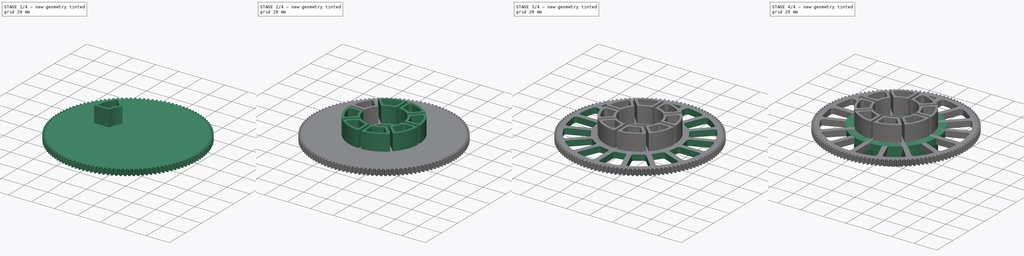
[diagram: build sequence overview — one tinted view per stage of 4, left to right]
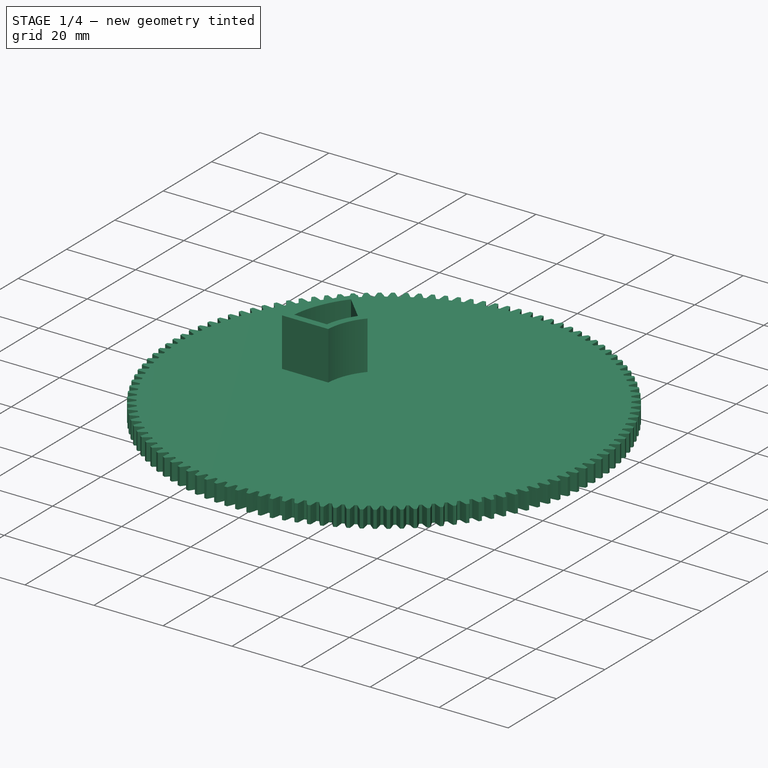
[diagram: stage 1 of 4 — iso view after this stage's code; geometry added in this stage tinted green]
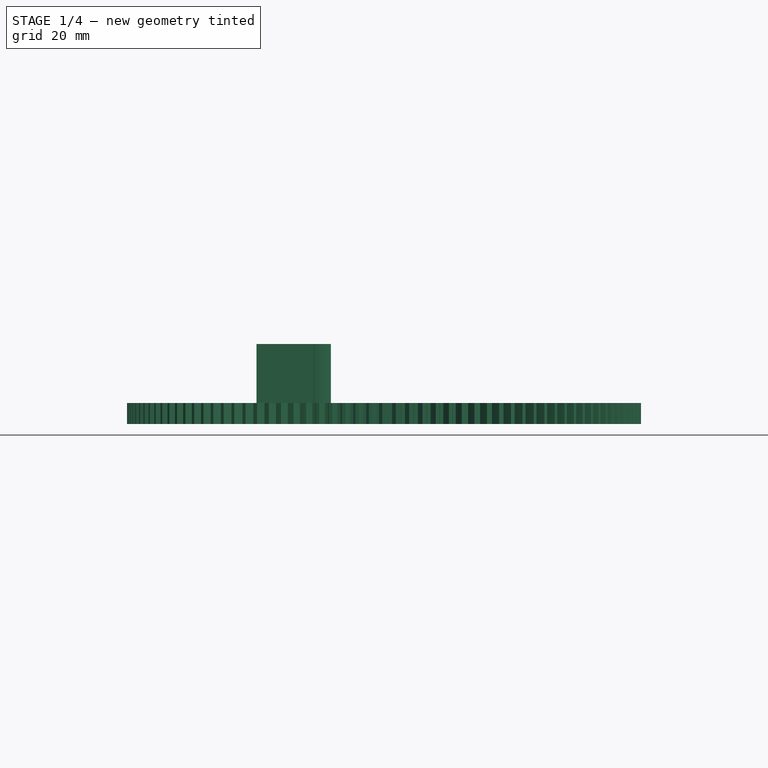
[diagram: stage 1 of 4 — front view after this stage's code; geometry added in this stage tinted green]
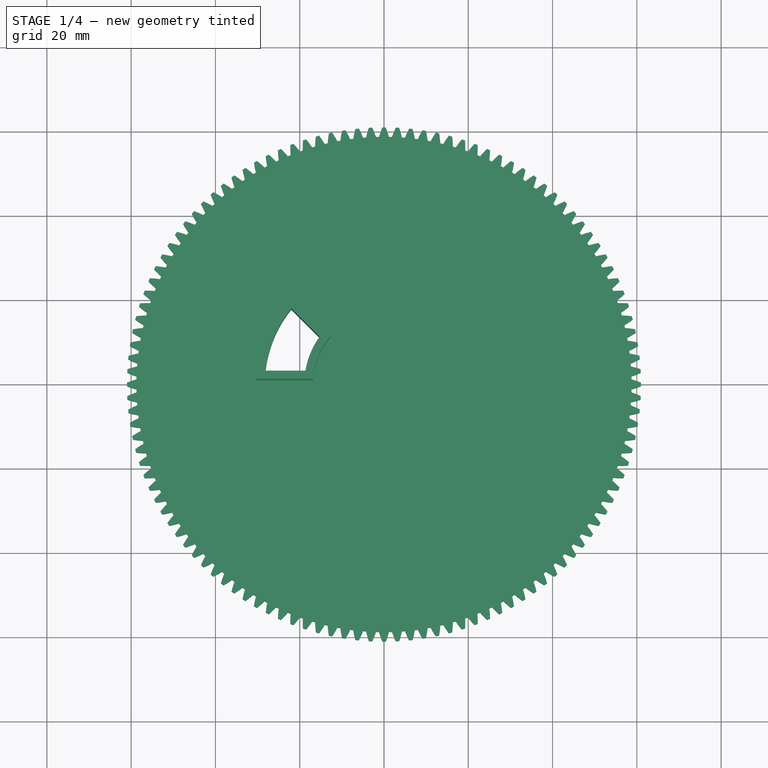
[diagram: stage 1 of 4 — top view after this stage's code; geometry added in this stage tinted green]
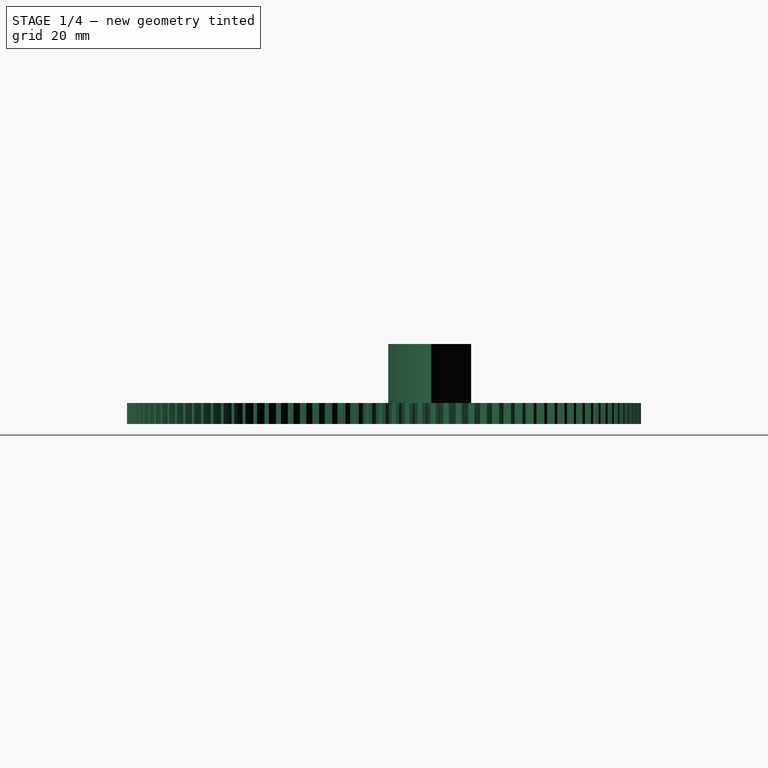
[diagram: stage 1 of 4 — right view after this stage's code; geometry added in this stage tinted green]
FCSTD DOCUMENT  (FreeCAD 0.20R29177 +233 (Git))
Label: solar_turner_coupling_test
License: All rights reserved
LicenseURL: http://en.wikipedia.org/wiki/All_rights_reserved
objects: Sketcher::SketchObject×8, PartDesign::Pocket×4, PartDesign::Pad×3, PartDesign::PolarPattern×3, PartDesign::Body×2, PartDesign::Fillet×2, Part::FeaturePython×1, PartDesign::FeatureBase×1
note: 33 computed .brp shape members not serialized (recipe doc carries the construction recipe); baked Part::Feature solids carry a one-line shape summary decoded from their .brp

FEATURE [PartDesign::Body] Body
  Group = -> [Sketch,Sketch001,Pad,Sketch002,Pad001,PolarPattern,Sketch003,Pocket]
  Origin = -> Origin
  Tip = -> Pocket
FEATURE [Part::FeaturePython] InvoluteGear  # WARN: FeaturePython — macro-defined, semantics opaque (R4)
  AttacherType = Attacher::AttachEngine3D
  MapMode = 5
  Placement = pos=(0,0,5) rot=(0,1,0;3.14159rad)
  angular_backlash = 0
  backlash = 0
  beta = 0
  clearance = 0.25
  da = 122
  df = 117.5
  double_helix = false
  dw = 120
  head = 0
  head_fillet = 0
  height = 5
  module = 1
  numpoints = 6
  pressure_angle = 20
  properties_from_tool = false
  reversed_backlash = false
  root_fillet = 0
  shift = 0
  simple = false
  teeth = 120
  transverse_pitch = 3.14159
  undercut = false
  version = 0.0.4
  expr: angular_backlash = backlash / dw * 360° / pi
  expr: dw = teeth * module
FEATURE [PartDesign::FeatureBase] BaseFeature
  BaseFeature = -> InvoluteGear
FEATURE [Sketcher::SketchObject] Sketch007
  FullyConstrained = true
  MapMode = 5
  Placement = pos=(0,0,5) rot=(0,0,1;0rad)
  Support = -> [BaseFeature]
  expr: Constraints[48] = 360 / 8 / 2
  sketch-geometry (24):
    g0: LineSegment StartX=-31.75 StartY=0 StartZ=0 EndX=-22.4506 EndY=-22.4506 EndZ=0
    g1: LineSegment StartX=-22.4506 StartY=-22.4506 StartZ=0 EndX=-1.5561e-12 EndY=-31.75 EndZ=0
    g2: LineSegment StartX=-1.5561e-12 StartY=-31.75 StartZ=0 EndX=22.4506 EndY=-22.4506 EndZ=0
    g3: LineSegment StartX=22.4506 StartY=-22.4506 StartZ=0 EndX=31.75 EndY=-3.2578e-12 EndZ=0
    g4: LineSegment StartX=31.75 StartY=-3.2578e-12 StartZ=0 EndX=22.4506 EndY=22.4506 EndZ=0
    g5: LineSegment StartX=22.4506 StartY=22.4506 StartZ=0 EndX=4.9631e-12 EndY=31.75 EndZ=0
    g6: LineSegment StartX=4.9625e-12 StartY=31.75 StartZ=0 EndX=-22.4506 EndY=22.4506 EndZ=0
    g7: LineSegment StartX=-22.4506 StartY=22.4506 StartZ=0 EndX=-31.75 EndY=6.672e-12 EndZ=0
    g8: Circle CenterX=0 CenterY=0 CenterZ=0 NormalX=0 NormalY=0 NormalZ=1 AngleXU=0 Radius=31.75
    g9: LineSegment StartX=-22.4506 StartY=22.4506 StartZ=0 EndX=0 EndY=0 EndZ=0
    g10: LineSegment StartX=-31.75 StartY=0 StartZ=0 EndX=0 EndY=0 EndZ=0
    g11: ArcOfCircle CenterX=0 CenterY=0 CenterZ=0 NormalX=0 NormalY=0 NormalZ=1 AngleXU=0 Radius=16.875 StartAngle=2.41549 EndAngle=3.0823
    g12: LineSegment StartX=-12.6186 StartY=11.2044 StartZ=0 EndX=-22.0995 EndY=20.6853 EndZ=0
    g13: LineSegment StartX=-22.0995 StartY=20.6853 StartZ=0 EndX=-30.2534 EndY=1 EndZ=0
    g14: LineSegment StartX=-30.2534 StartY=1 StartZ=0 EndX=-16.8453 EndY=1 EndZ=0
    g15: LineSegment StartX=-15.5905 StartY=6.45778 StartZ=0 EndX=-14.6666 EndY=6.0751 EndZ=0
    g16: LineSegment StartX=-23.5494 StartY=1 StartZ=0 EndX=-23.5494 EndY=0 EndZ=0
    g17: LineSegment StartX=-26.1764 StartY=10.8426 StartZ=0 EndX=-27.1003 EndY=11.2253 EndZ=0
    g18: LineSegment StartX=-17.359 StartY=15.9448 StartZ=0 EndX=-16.6519 EndY=16.6519 EndZ=0
    g19: LineSegment StartX=-16.8453 StartY=1 StartZ=0 EndX=-30.2534 EndY=1 EndZ=0
    g20: LineSegment StartX=-30.2534 StartY=1 StartZ=0 EndX=-22.0995 EndY=20.6853 EndZ=0
    g21: LineSegment StartX=-22.0995 StartY=20.6853 StartZ=0 EndX=-12.6186 EndY=11.2044 EndZ=0
    g22: ArcOfCircle CenterX=0 CenterY=0 CenterZ=0 NormalX=0 NormalY=0 NormalZ=1 AngleXU=0 Radius=30.2699 StartAngle=2.38924 EndAngle=3.10855
    g23: Circle CenterX=0 CenterY=0 CenterZ=0 NormalX=0 NormalY=0 NormalZ=1 AngleXU=0 Radius=15.875
  constraints (59):
    c: Coincident(g0,g1)
    c: Coincident(g1,g2)
    c: Coincident(g2,g3)
    c: Coincident(g3,g4)
    c: Coincident(g4,g5)
    c: Coincident(g5,g6)
    c: Coincident(g6,g7)
    c: Equal(g0, g1-g7) x7
    c: PointOnObject(g0,g8)
    c: PointOnObject(g1,g8)
    c: PointOnObject(g2,g8)
    c: PointOnObject(g3,g8)
    c: PointOnObject(g4,g8)
    c: PointOnObject(g5,g8)
    c: PointOnObject(g6,g8)
    c: PointOnObject(g7,g8)
    c: Coincident(g9,g6)
    c: Coincident(g9,g8)
    c: Coincident(g10,g0)
    c: Coincident(g10,g8)
    c: Horizontal(g10)
    c: Coincident(g11,g8)
    c: Coincident(g12,g11)
    c: Coincident(g13,g12)
    c: Coincident(g14,g13)
    c: Coincident(g14,g11)
    c: Horizontal(g14)
    c: Parallel(g12,g9)
    c: Parallel(g13,g7)
    c: PointOnObject(g15,g11)
    c: Perpendicular(g11,g15)
    c: PointOnObject(g16,g10)
    c: Vertical(g16)
    c: PointOnObject(g17,g7)
    c: Perpendicular(g13,g17)
    c: Distance(g17) = 1
    c: PointOnObject(g18,g9)
    c: Perpendicular(g12,g18)
    c: Symmetric(g12,g13,g17)
    c: Symmetric(g6,g0,g17)
    c: Symmetric(g13,g11,g16)
    c: Symmetric(g12,g11,g18)
    c: Angle(g15,g10) = 0.392699
    c: Equal(g16,g17)
    c: Equal(g18,g15)
    c: Coincident(g19,g11)
    c: Coincident(g19,g13)
    c: Coincident(g20,g19)
    c: Coincident(g20,g12)
    c: Coincident(g21,g20)
    c: Coincident(g21,g11)
    c: Coincident(g22,g11)
    c: Coincident(g22,g19)
    c: Coincident(g22,g21)
    c: Coincident(g11,g-1)
    c: Coincident(g23,g11)
    c: PointOnObject(g15,g23)
    c: Diameter(g23) = 31.75
    c: Diameter(g8) = 63.5
FEATURE [PartDesign::Pad] Pad002
  BaseFeature = -> BaseFeature
  Direction = (0,0,1)
  Length = 14
  Length2 = 10
  Profile = -> Sketch007
  ReferenceAxis = -> Sketch007 [N_Axis]
  Type = 0
FEATURE [Sketcher::SketchObject] Sketch010
  ExternalGeometry = -> [Pad002]
  FullyConstrained = true
  MapMode = 5
  Placement = pos=(0,0,19) rot=(0,0,1;0rad)
  Support = -> [Pad002]
  sketch-geometry (8):
    g0: LineSegment StartX=-15.2983 StartY=11.0557 StartZ=0 EndX=-21.9983 EndY=17.7557 EndZ=0
    g1: LineSegment StartX=-18.6351 StartY=3 StartZ=0 EndX=-28.1103 EndY=3 EndZ=0
    g2: ArcOfCircle CenterX=0 CenterY=0 CenterZ=0 NormalX=0 NormalY=0 NormalZ=1 AngleXU=0 Radius=18.875 StartAngle=2.51581 EndAngle=2.98198
    g3: ArcOfCircle CenterX=0 CenterY=0 CenterZ=0 NormalX=0 NormalY=0 NormalZ=1 AngleXU=0 Radius=28.2699 StartAngle=2.46251 EndAngle=3.03527
    g4: LineSegment StartX=-21.9983 StartY=17.7557 StartZ=0 EndX=-23.5546 EndY=19.0118 EndZ=0
    g5: LineSegment StartX=-23.3727 StartY=3 StartZ=0 EndX=-23.3727 EndY=1 EndZ=0
    g6: LineSegment StartX=-18.6483 StartY=14.4057 StartZ=0 EndX=-17.2341 EndY=15.8199 EndZ=0
    g7: LineSegment StartX=-15.2983 StartY=11.0557 StartZ=0 EndX=-13.6773 EndY=9.8842 EndZ=0
  constraints (26):
    c: Horizontal(g1)
    c: Coincident(g2,g-6)
    c: Coincident(g2,g1)
    c: Coincident(g2,g0)
    c: Coincident(g3,g2)
    c: Coincident(g3,g1)
    c: Coincident(g3,g0)
    c: Parallel(g0,g-3)
    c: Equal(g6,g4)
    c: Equal(g4,g5)
    c: Perpendicular(g0,g6)
    c: Perpendicular(g3,g4)
    c: Perpendicular(g1,g5)
    c: PointOnObject(g5,g-5)
    c: PointOnObject(g6,g-3)
    c: PointOnObject(g4,g-4)
    c: PointOnObject(g4,g3)
    c: Symmetric(g0,g0,g6)
    c: Symmetric(g1,g1,g5)
    c: PointOnObject(g7,g-6)
    c: PointOnObject(g7,g2)
    c: Perpendicular(g2,g7)
    c: Equal(g7,g4)
    c: Distance(g4) = 2
    c: PointOnObject(g4,g0)
    c: PointOnObject(g7,g0)
FEATURE [PartDesign::Pocket] Pocket003
  BaseFeature = -> Pad002
  Direction = (0,0,-1)
  Length = 5
  Length2 = 5
  Profile = -> Sketch010
  ReferenceAxis = -> Sketch010 [N_Axis]
  Type = 2
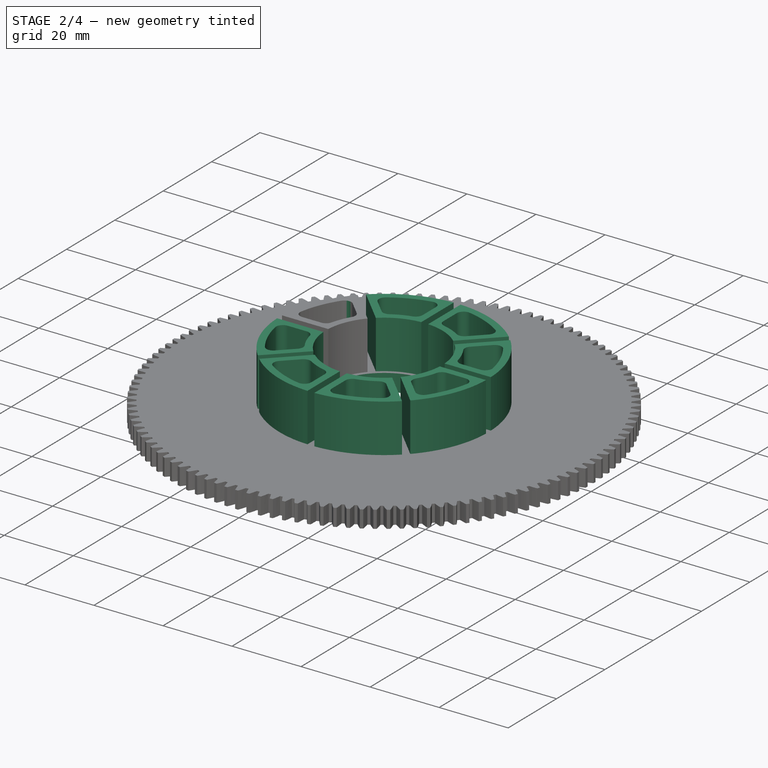
[diagram: stage 2 of 4 — iso view after this stage's code; geometry added in this stage tinted green]
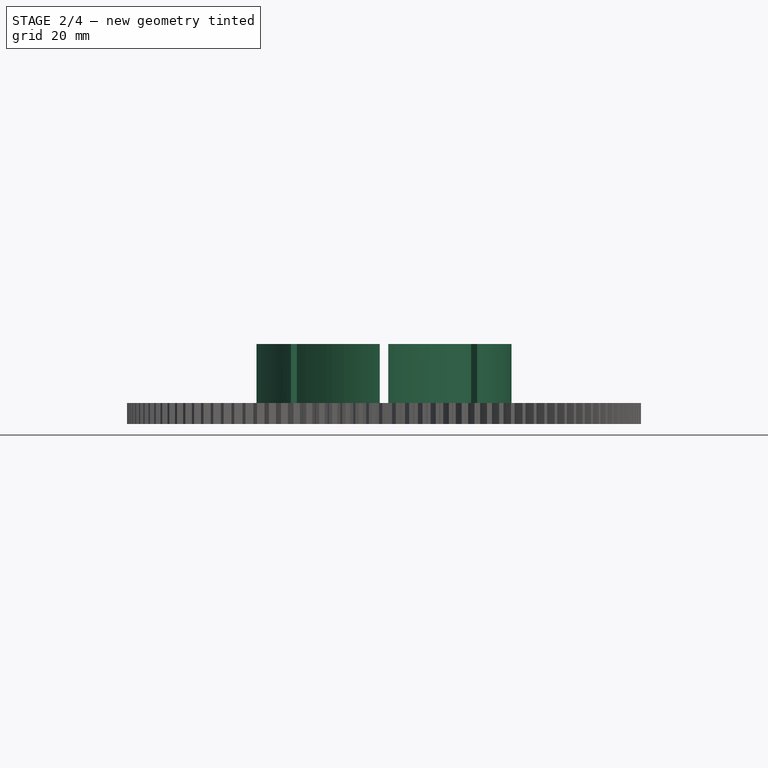
[diagram: stage 2 of 4 — front view after this stage's code; geometry added in this stage tinted green]
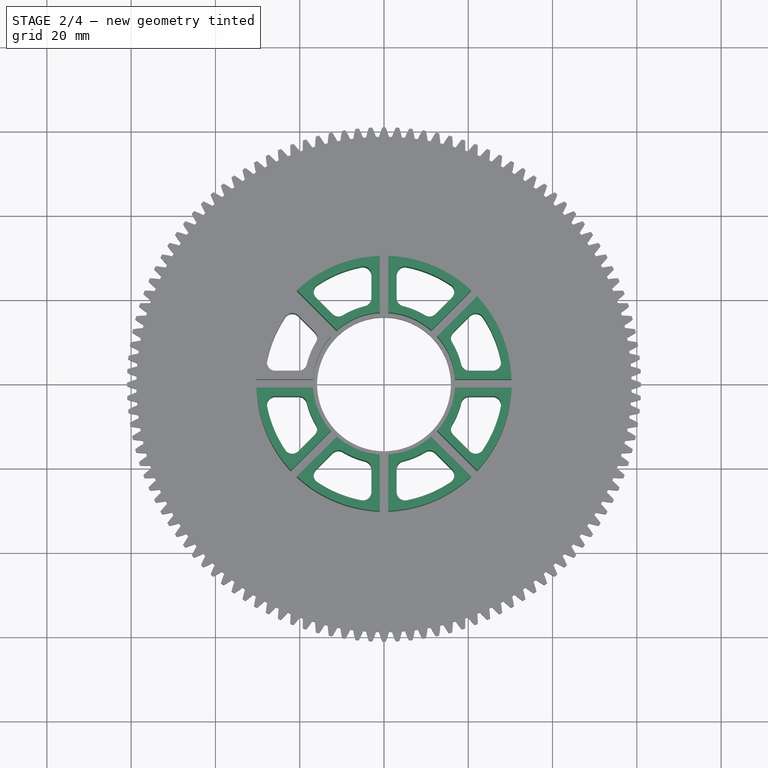
[diagram: stage 2 of 4 — top view after this stage's code; geometry added in this stage tinted green]
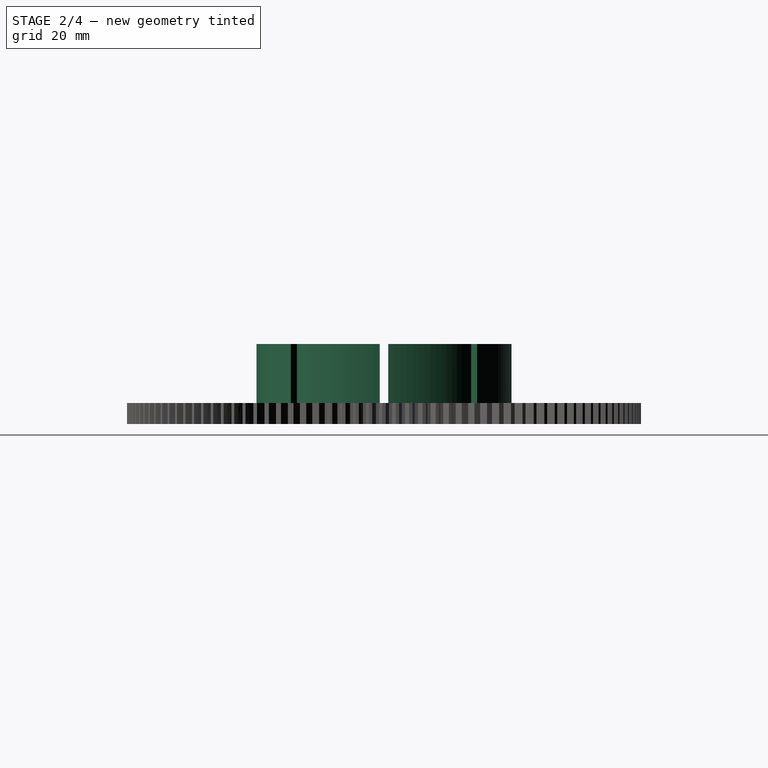
[diagram: stage 2 of 4 — right view after this stage's code; geometry added in this stage tinted green]
FEATURE [PartDesign::Fillet] Fillet
  Base = -> Pocket003 [Edge1453,Edge1450,Edge1451,Edge1455]
  BaseFeature = -> Pocket003
  Radius = 2
  SupportTransform = false
  UseAllEdges = false
FEATURE [PartDesign::PolarPattern] PolarPattern001
  Angle = 360
  Axis = -> Sketch007 [N_Axis]
  BaseFeature = -> Fillet
  Occurrences = 8
  Originals = -> [Pad002,Pocket003,Fillet]
FEATURE [Sketcher::SketchObject] Sketch008
  FullyConstrained = true
  MapMode = 5
  Placement = pos=(0,0,5) rot=(0,0,1;0rad)
  Support = -> [PolarPattern001]
  sketch-geometry (1):
    g0: Circle CenterX=0 CenterY=0 CenterZ=0 NormalX=0 NormalY=0 NormalZ=1 AngleXU=0 Radius=15.875
  constraints (2):
    c: Coincident(g0,g-1)
    c: Diameter(g0) = 31.75
FEATURE [PartDesign::Pocket] Pocket001
  BaseFeature = -> PolarPattern001
  Direction = (0,0,-1)
  Length = 5
  Length2 = 5
  Profile = -> Sketch008
  ReferenceAxis = -> Sketch008 [N_Axis]
  Type = 2
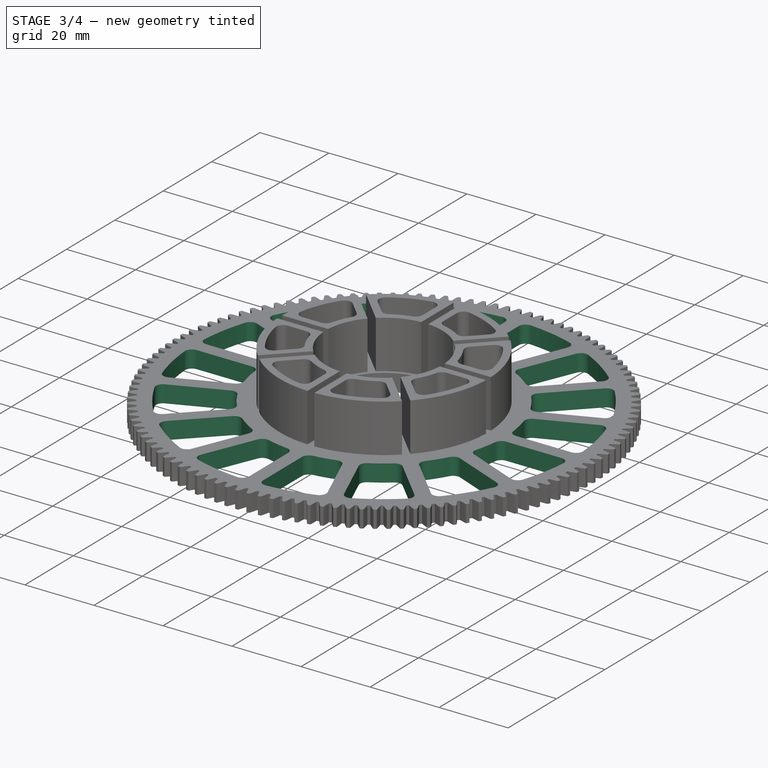
[diagram: stage 3 of 4 — iso view after this stage's code; geometry added in this stage tinted green]
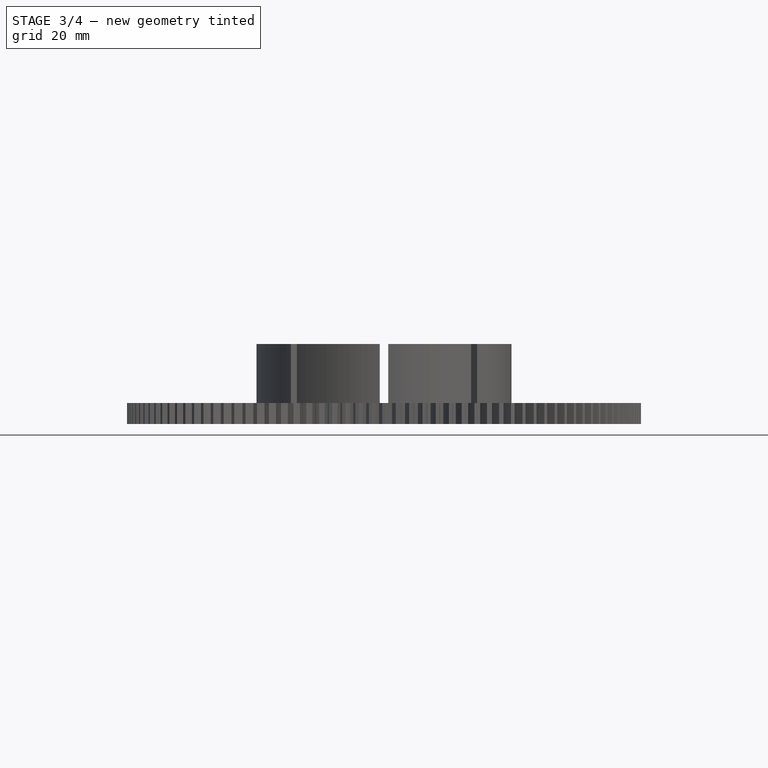
[diagram: stage 3 of 4 — front view after this stage's code; geometry added in this stage tinted green]
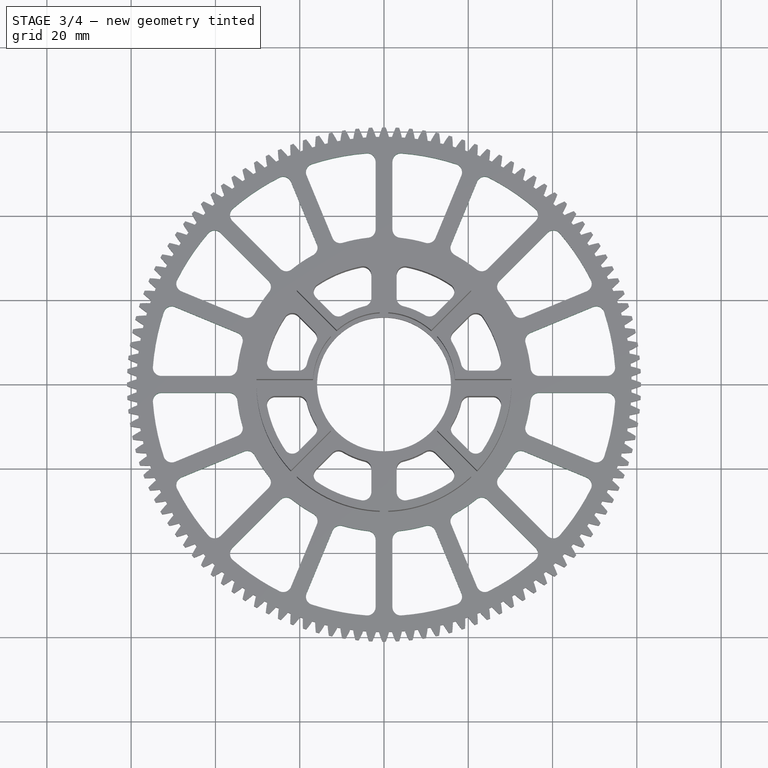
[diagram: stage 3 of 4 — top view after this stage's code; geometry added in this stage tinted green]
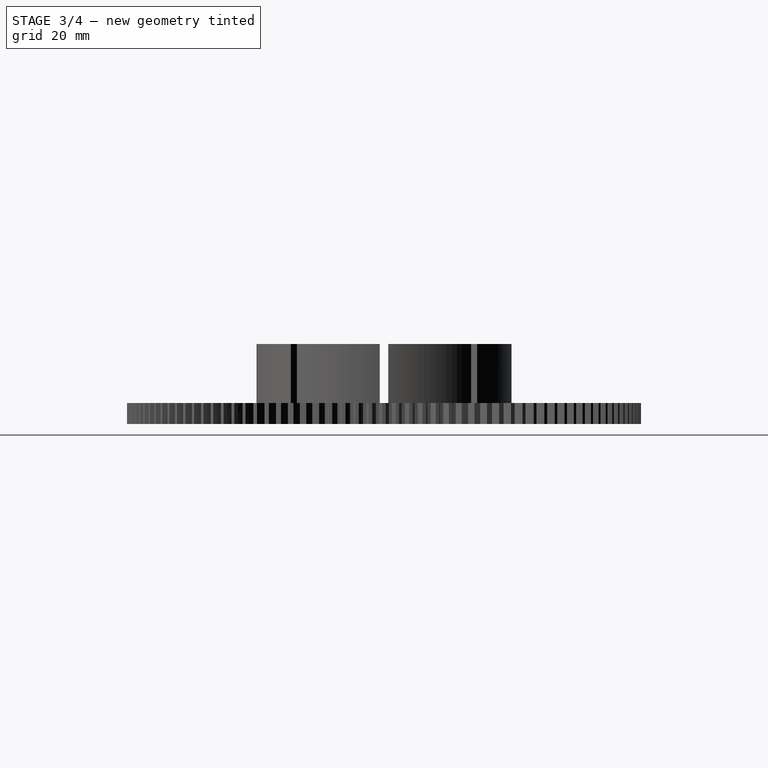
[diagram: stage 3 of 4 — right view after this stage's code; geometry added in this stage tinted green]
FEATURE [Sketcher::SketchObject] Sketch009
  FullyConstrained = true
  MapMode = 5
  Placement = pos=(0,0,5) rot=(0,0,1;0rad)
  Support = -> [Pocket001]
  sketch-geometry (19):
    g0: Circle CenterX=0 CenterY=0 CenterZ=0 NormalX=0 NormalY=0 NormalZ=1 AngleXU=0 Radius=35
    g1: LineSegment StartX=-55 StartY=0 StartZ=0 EndX=-38.8909 EndY=-38.8909 EndZ=0
    g2: LineSegment StartX=-38.8909 StartY=-38.8909 StartZ=0 EndX=7.1e-15 EndY=-55 EndZ=0
    g3: LineSegment StartX=7.1e-15 StartY=-55 StartZ=0 EndX=38.8909 EndY=-38.8909 EndZ=0
    g4: LineSegment StartX=38.8909 StartY=-38.8909 StartZ=0 EndX=55 EndY=-7.1e-15 EndZ=0
    g5: LineSegment StartX=55 StartY=-7.1e-15 StartZ=0 EndX=38.8909 EndY=38.8909 EndZ=0
    g6: LineSegment StartX=38.8909 StartY=38.8909 StartZ=0 EndX=0 EndY=55 EndZ=0
    g7: LineSegment StartX=0 StartY=55 StartZ=0 EndX=-38.8909 EndY=38.8909 EndZ=0
    g8: LineSegment StartX=-38.8909 StartY=38.8909 StartZ=0 EndX=-55 EndY=0 EndZ=0
    g9: Circle CenterX=0 CenterY=0 CenterZ=0 NormalX=0 NormalY=0 NormalZ=1 AngleXU=0 Radius=55
    g10: LineSegment StartX=-55 StartY=0 StartZ=0 EndX=-35 EndY=0 EndZ=0
    g11: LineSegment StartX=-24.7487 StartY=-24.7487 StartZ=0 EndX=-38.8909 EndY=-38.8909 EndZ=0
    g12: LineSegment StartX=-54.9636 StartY=-2 StartZ=0 EndX=-34.9428 EndY=-2 EndZ=0
    g13: LineSegment StartX=-51.5451 StartY=-19.1859 StartZ=0 EndX=-33.0483 EndY=-11.5243 EndZ=0
    g14: ArcOfCircle CenterX=0 CenterY=0 CenterZ=0 NormalX=0 NormalY=0 NormalZ=1 AngleXU=0 Radius=35 StartAngle=3.19877 EndAngle=3.47712
    g15: ArcOfCircle CenterX=0 CenterY=0 CenterZ=0 NormalX=0 NormalY=0 NormalZ=1 AngleXU=0 Radius=55 StartAngle=3.17796 EndAngle=3.49792
    g16: LineSegment StartX=-44.9532 StartY=-2 StartZ=0 EndX=-44.9532 EndY=0 EndZ=0
    g17: LineSegment StartX=0 StartY=0 StartZ=0 EndX=-46.9454 EndY=-19.4454 EndZ=0
    g18: LineSegment StartX=-42.2967 StartY=-15.3551 StartZ=0 EndX=-41.5314 EndY=-17.2029 EndZ=0
  constraints (49):
    c: Diameter(g0) = 70
    c: Coincident(g1,g2)
    c: Coincident(g2,g3)
    c: Coincident(g3,g4)
    c: Coincident(g4,g5)
    c: Coincident(g5,g6)
    c: Coincident(g6,g7)
    c: Coincident(g7,g8)
    c: Coincident(g8,g1)
    c: Equal(g1, g2-g8) x7
    c: PointOnObject(g1,g9)
    c: PointOnObject(g2,g9)
    c: PointOnObject(g3,g9)
    c: PointOnObject(g4,g9)
    c: PointOnObject(g5,g9)
    c: PointOnObject(g6,g9)
    c: PointOnObject(g7,g9)
    c: PointOnObject(g8,g9)
    c: Coincident(g9,g0)
    c: PointOnObject(g8,g-1)
    c: Diameter(g9) = 110
    c: PointOnObject(g10,g1)
    c: PointOnObject(g10,g0)
    c: Horizontal(g10)
    c: PointOnObject(g11,g0)
    c: Coincident(g11,g1)
    c: Perpendicular(g0,g11)
    c: Perpendicular(g0,g10)
    c: Coincident(g-1,g0)
    c: Horizontal(g12)
    c: PointOnObject(g12,g0)
    c: PointOnObject(g13,g9)
    c: Coincident(g14,g0)
    c: Coincident(g14,g13)
    c: Coincident(g14,g12)
    c: Coincident(g15,g14)
    c: Coincident(g15,g13)
    c: Coincident(g15,g12)
    c: PointOnObject(g16,g10)
    c: Vertical(g16)
    c: Distance(g16) = 2
    c: Symmetric(g12,g12,g16)
    c: Coincident(g17,g14)
    c: Symmetric(g1,g1,g17)
    c: Parallel(g13,g17)
    c: Perpendicular(g13,g18)
    c: Symmetric(g13,g13,g18)
    c: PointOnObject(g18,g17)
    c: Equal(g16,g18)
FEATURE [PartDesign::Pocket] Pocket002
  BaseFeature = -> Pocket001
  Direction = (0,0,-1)
  Length = 5
  Length2 = 5
  Profile = -> Sketch009
  ReferenceAxis = -> Sketch009 [N_Axis]
  Type = 2
FEATURE [PartDesign::Fillet] Fillet001
  Base = -> Pocket002 [Edge1540,Edge1544,Edge1542,Edge1539]
  BaseFeature = -> Pocket002
  Radius = 2
  SupportTransform = false
  UseAllEdges = false
FEATURE [PartDesign::PolarPattern] PolarPattern002
  Angle = 360
  Axis = -> Sketch009 [N_Axis]
  BaseFeature = -> Fillet001
  Occurrences = 16
  Originals = -> [Pocket002,Fillet001]
FEATURE [PartDesign::Body] Body001  label="geared_coupler"
  BaseFeature = -> InvoluteGear
  Group = -> [BaseFeature,Sketch007,Pad002,Sketch010,Pocket003,Fillet,PolarPattern001,Sketch008,Pocket001,Sketch009,Pocket002,Fillet001,PolarPattern002]
  Origin = -> Origin001
  Tip = -> PolarPattern002
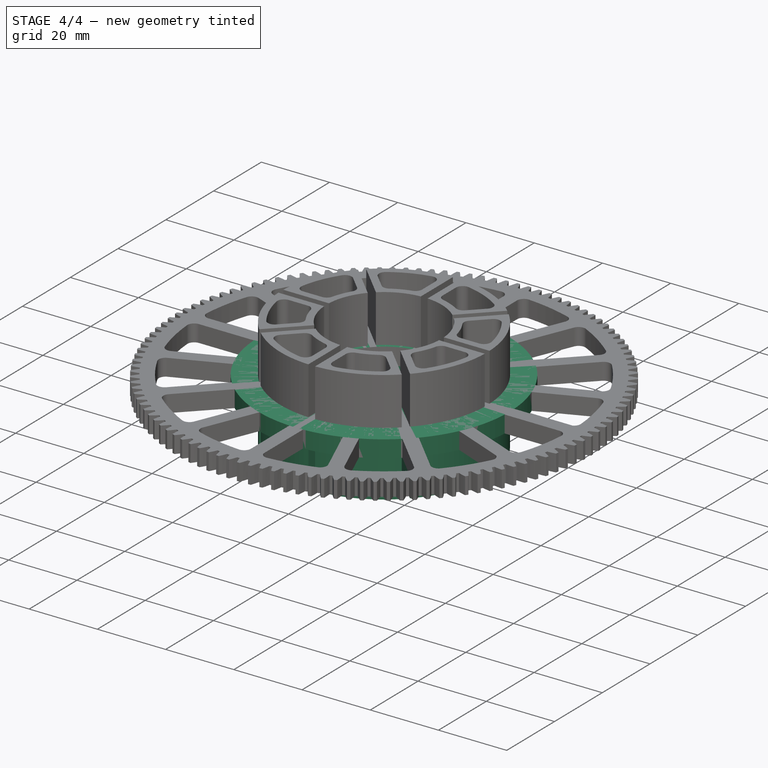
[diagram: stage 4 of 4 — iso view after this stage's code; geometry added in this stage tinted green]
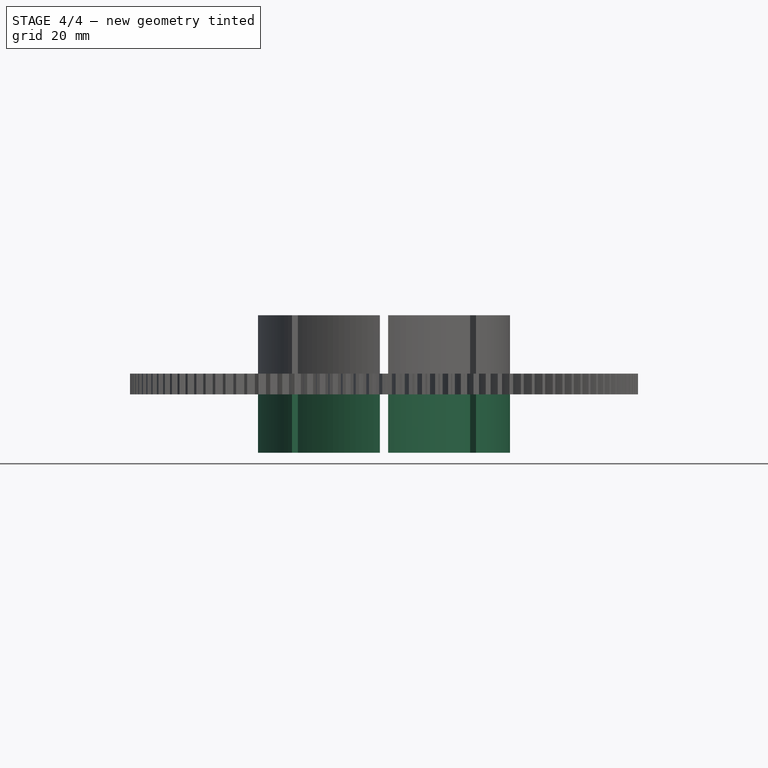
[diagram: stage 4 of 4 — front view after this stage's code; geometry added in this stage tinted green]
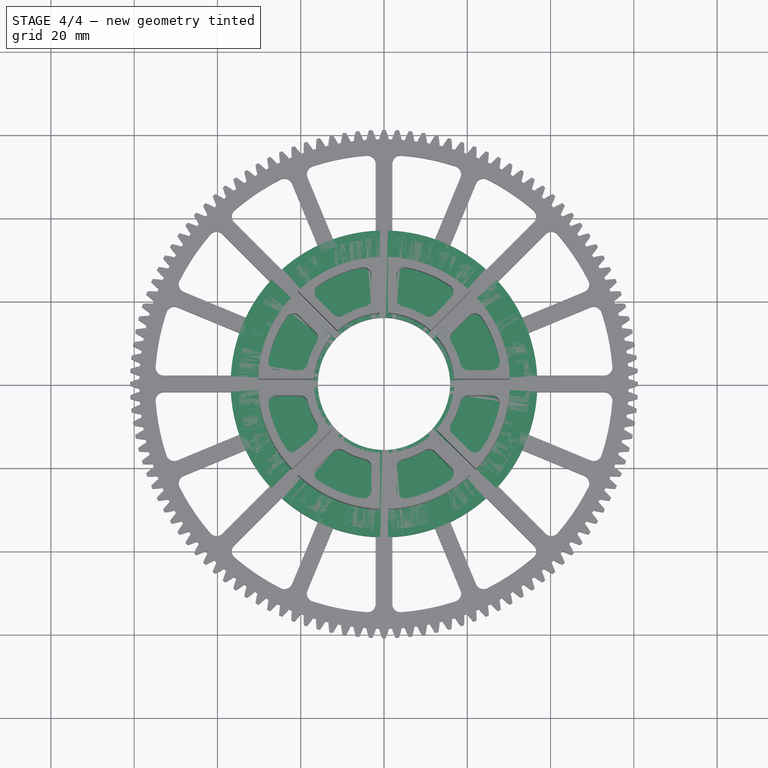
[diagram: stage 4 of 4 — top view after this stage's code; geometry added in this stage tinted green]
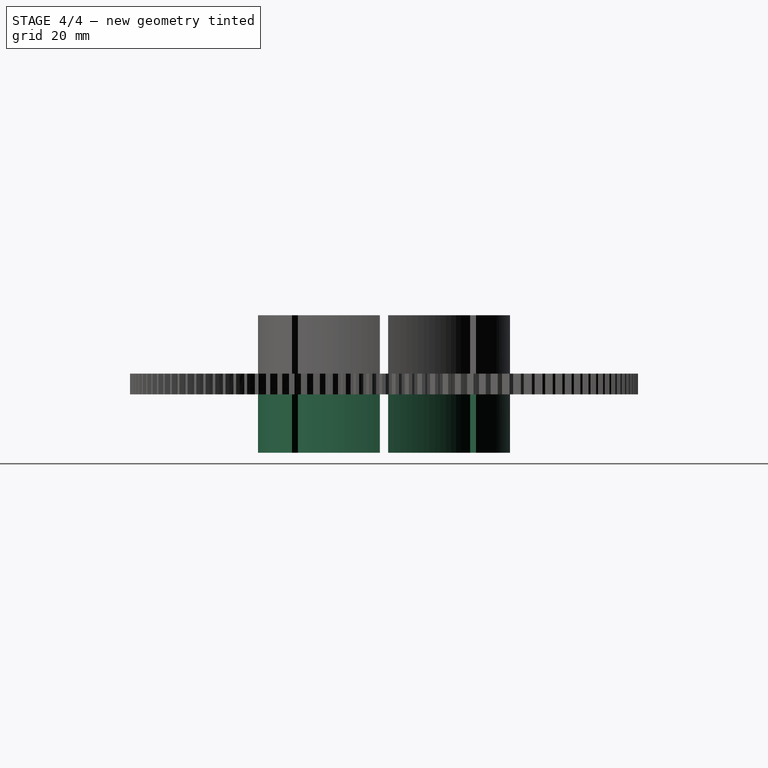
[diagram: stage 4 of 4 — right view after this stage's code; geometry added in this stage tinted green]
FEATURE [Sketcher::SketchObject] Sketch
  FullyConstrained = true
  MapMode = 5
  Support = -> [XY_Plane]
  expr: Constraints[1] = 2.9in
  sketch-geometry (3):
    g0: Circle CenterX=0 CenterY=0 CenterZ=0 NormalX=0 NormalY=0 NormalZ=1 AngleXU=0 Radius=36.83
    g1: Circle CenterX=0 CenterY=0 CenterZ=0 NormalX=0 NormalY=0 NormalZ=1 AngleXU=0 Radius=31.75
    g2: Circle CenterX=0 CenterY=0 CenterZ=0 NormalX=0 NormalY=0 NormalZ=1 AngleXU=0 Radius=15.875
  constraints (6):
    c: Coincident(g0,g-1)
    c: Diameter(g0) = 73.66
    c: Coincident(g1,g0)
    c: Diameter(g1) = 63.5
    c: Coincident(g2,g0)
    c: Diameter(g2) = 31.75
FEATURE [Sketcher::SketchObject] Sketch001
  ExternalGeometry = -> [Sketch]
  FullyConstrained = true
  MapMode = 5
  Support = -> [XY_Plane]
  sketch-geometry (1):
    g0: Circle CenterX=0 CenterY=0 CenterZ=0 NormalX=0 NormalY=0 NormalZ=1 AngleXU=0 Radius=36.83
  constraints (2):
    c: Coincident(g0,g-3)
    c: Equal(g0,g-3)
FEATURE [PartDesign::Pad] Pad
  Direction = (0,0,1)
  Length = 5
  Length2 = 10
  Profile = -> Sketch001
  ReferenceAxis = -> Sketch001 [N_Axis]
  Type = 0
FEATURE [Sketcher::SketchObject] Sketch002
  ExternalGeometry = -> [Sketch]
  FullyConstrained = true
  MapMode = 5
  Placement = pos=(0,0,0) rot=(1,0,0;3.14159rad)
  Support = -> [Pad]
  expr: Constraints[51] = 360 / 8 / 2
  sketch-geometry (23):
    g0: LineSegment StartX=-31.75 StartY=0 StartZ=0 EndX=-22.4506 EndY=-22.4506 EndZ=0
    g1: LineSegment StartX=-22.4506 StartY=-22.4506 StartZ=0 EndX=1.9575e-12 EndY=-31.75 EndZ=0
    g2: LineSegment StartX=1.9575e-12 StartY=-31.75 StartZ=0 EndX=22.4506 EndY=-22.4506 EndZ=0
    g3: LineSegment StartX=22.4506 StartY=-22.4506 StartZ=0 EndX=31.75 EndY=3.0269e-12 EndZ=0
    g4: LineSegment StartX=31.75 StartY=3.0269e-12 StartZ=0 EndX=22.4506 EndY=22.4506 EndZ=0
    g5: LineSegment StartX=22.4506 StartY=22.4506 StartZ=0 EndX=-4.0927e-12 EndY=31.75 EndZ=0
    g6: LineSegment StartX=-4.0939e-12 StartY=31.75 StartZ=0 EndX=-22.4506 EndY=22.4506 EndZ=0
    g7: LineSegment StartX=-22.4506 StartY=22.4506 StartZ=0 EndX=-31.75 EndY=-5.1656e-12 EndZ=0
    g8: Circle CenterX=0 CenterY=0 CenterZ=0 NormalX=0 NormalY=0 NormalZ=1 AngleXU=0 Radius=31.75
    g9: LineSegment StartX=-22.4506 StartY=22.4506 StartZ=0 EndX=0 EndY=0 EndZ=0
    g10: LineSegment StartX=-31.75 StartY=0 StartZ=0 EndX=0 EndY=0 EndZ=0
    g11: ArcOfCircle CenterX=0 CenterY=0 CenterZ=0 NormalX=0 NormalY=0 NormalZ=1 AngleXU=0 Radius=16.875 StartAngle=2.41549 EndAngle=3.0823
    g12: LineSegment StartX=-12.6186 StartY=11.2044 StartZ=0 EndX=-22.0995 EndY=20.6853 EndZ=0
    g13: LineSegment StartX=-22.0995 StartY=20.6853 StartZ=0 EndX=-30.2534 EndY=1 EndZ=0
    g14: LineSegment StartX=-30.2534 StartY=1 StartZ=0 EndX=-16.8453 EndY=1 EndZ=0
    g15: LineSegment StartX=-15.5905 StartY=6.45778 StartZ=0 EndX=-14.6666 EndY=6.0751 EndZ=0
    g16: LineSegment StartX=-23.5494 StartY=1 StartZ=0 EndX=-23.5494 EndY=0 EndZ=0
    g17: LineSegment StartX=-26.1764 StartY=10.8426 StartZ=0 EndX=-27.1003 EndY=11.2253 EndZ=0
    g18: LineSegment StartX=-17.359 StartY=15.9448 StartZ=0 EndX=-16.6519 EndY=16.6519 EndZ=0
    g19: LineSegment StartX=-16.8453 StartY=1 StartZ=0 EndX=-30.2534 EndY=1 EndZ=0
    g20: LineSegment StartX=-30.2534 StartY=1 StartZ=0 EndX=-22.0995 EndY=20.6853 EndZ=0
    g21: LineSegment StartX=-22.0995 StartY=20.6853 StartZ=0 EndX=-12.6186 EndY=11.2044 EndZ=0
    g22: ArcOfCircle CenterX=0 CenterY=0 CenterZ=0 NormalX=0 NormalY=0 NormalZ=1 AngleXU=0 Radius=30.2699 StartAngle=2.38924 EndAngle=3.10855
  constraints (57):
    c: Coincident(g0,g1)
    c: Coincident(g1,g2)
    c: Coincident(g2,g3)
    c: Coincident(g3,g4)
    c: Coincident(g4,g5)
    c: Coincident(g5,g6)
    c: Coincident(g6,g7)
    c: Equal(g0, g1-g7) x7
    c: PointOnObject(g0,g8)
    c: PointOnObject(g1,g8)
    c: PointOnObject(g2,g8)
    c: PointOnObject(g3,g8)
    c: PointOnObject(g4,g8)
    c: PointOnObject(g5,g8)
    c: PointOnObject(g6,g8)
    c: PointOnObject(g7,g8)
    c: Coincident(g8,g-4)
    c: PointOnObject(g7,g-3)
    c: Coincident(g9,g6)
    c: Coincident(g9,g8)
    c: Coincident(g10,g0)
    c: Coincident(g10,g8)
    c: Horizontal(g10)
    c: Coincident(g11,g8)
    c: Coincident(g12,g11)
    c: Coincident(g13,g12)
    c: Coincident(g14,g13)
    c: Coincident(g14,g11)
    c: Horizontal(g14)
    c: Parallel(g12,g9)
    c: Parallel(g13,g7)
    c: PointOnObject(g15,g11)
    c: PointOnObject(g15,g-4)
    c: Perpendicular(g11,g15)
    c: PointOnObject(g16,g10)
    c: Vertical(g16)
    c: PointOnObject(g17,g7)
    c: Perpendicular(g13,g17)
    c: Distance(g17) = 1
    c: PointOnObject(g18,g9)
    c: Perpendicular(g12,g18)
    c: Symmetric(g12,g13,g17)
    c: Symmetric(g6,g0,g17)
    c: Symmetric(g13,g11,g16)
    c: Symmetric(g12,g11,g18)
    c: Angle(g15,g10) = 0.392699
    c: Equal(g16,g17)
    c: Equal(g18,g15)
    c: Coincident(g19,g11)
    c: Coincident(g19,g13)
    c: Coincident(g20,g19)
    c: Coincident(g20,g12)
    c: Coincident(g21,g20)
    c: Coincident(g21,g11)
    c: Coincident(g22,g11)
    c: Coincident(g22,g19)
    c: Coincident(g22,g21)
FEATURE [PartDesign::Pad] Pad001
  BaseFeature = -> Pad
  Direction = (0,0,-1)
  Length = 14
  Length2 = 10
  Profile = -> Sketch002
  ReferenceAxis = -> Sketch002 [N_Axis]
  Type = 0
FEATURE [PartDesign::PolarPattern] PolarPattern
  Angle = 360
  Axis = -> Sketch002 [N_Axis]
  BaseFeature = -> Pad001
  Occurrences = 8
  Originals = -> [Pad001]
FEATURE [Sketcher::SketchObject] Sketch003
  ExternalGeometry = -> [Sketch]
  FullyConstrained = true
  MapMode = 5
  Support = -> [XY_Plane]
  sketch-geometry (1):
    g0: Circle CenterX=0 CenterY=0 CenterZ=0 NormalX=0 NormalY=0 NormalZ=1 AngleXU=0 Radius=15.875
  constraints (2):
    c: Coincident(g0,g-3)
    c: Equal(g0,g-3)
FEATURE [PartDesign::Pocket] Pocket
  BaseFeature = -> PolarPattern
  Direction = (0,0,-1)
  Length = 5
  Length2 = 5
  Profile = -> Sketch003
  ReferenceAxis = -> Sketch003 [N_Axis]
  Reversed = true
  Type = 2
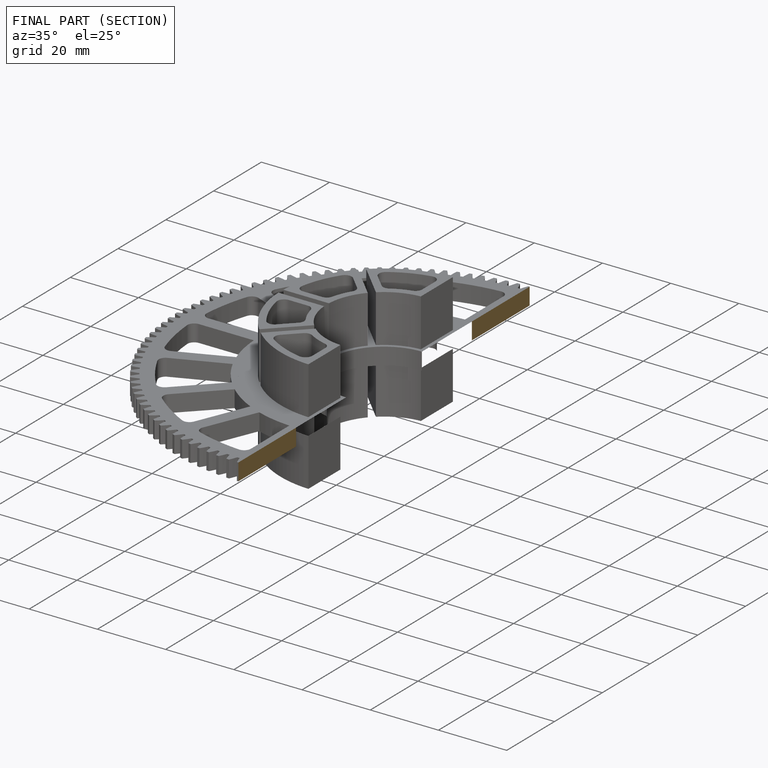
[diagram: finished part — half-section view (interior)]
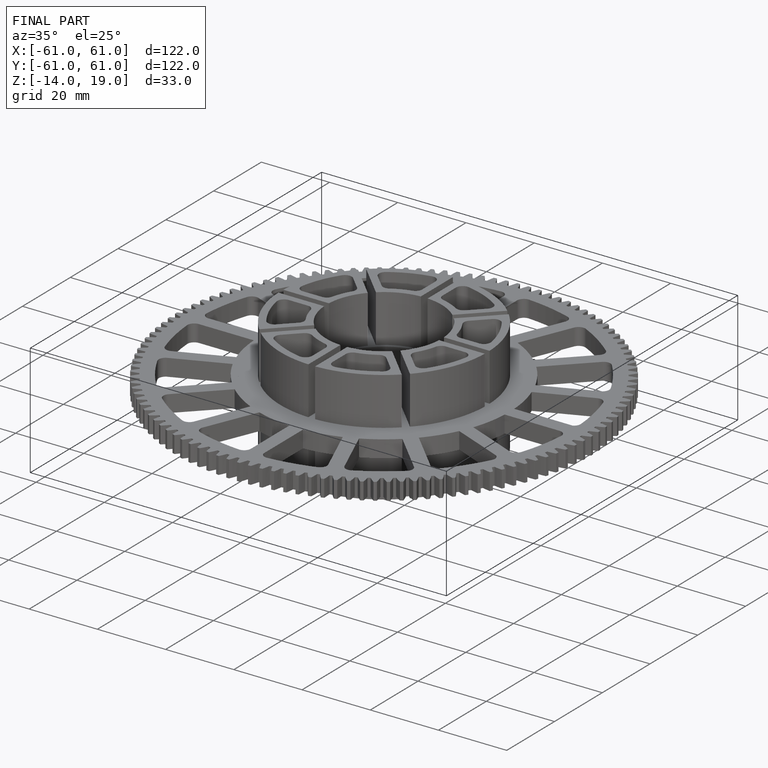
[diagram: finished part — iso view with bounding-box wireframe]
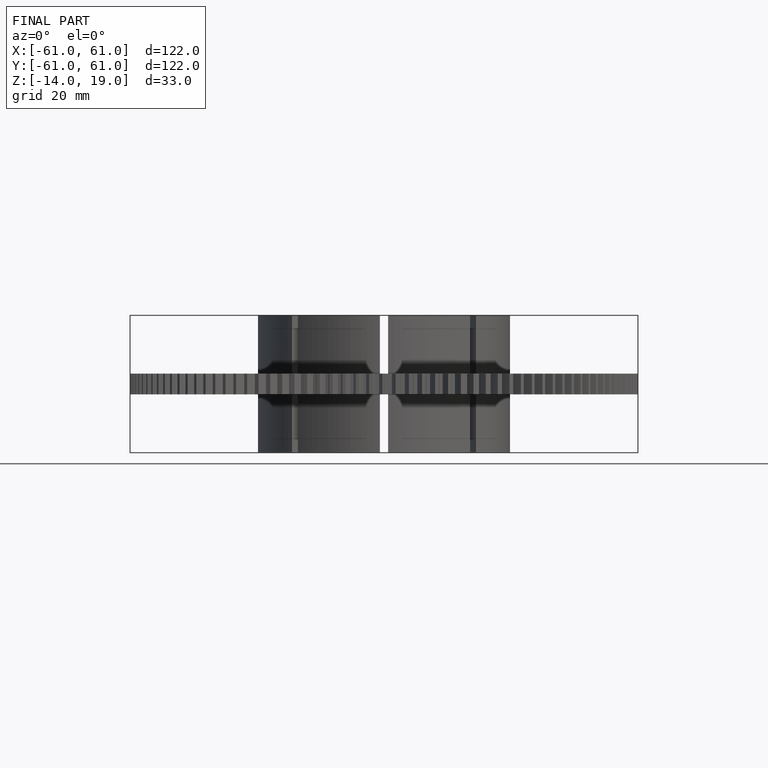
[diagram: finished part — front view with bounding-box wireframe]
